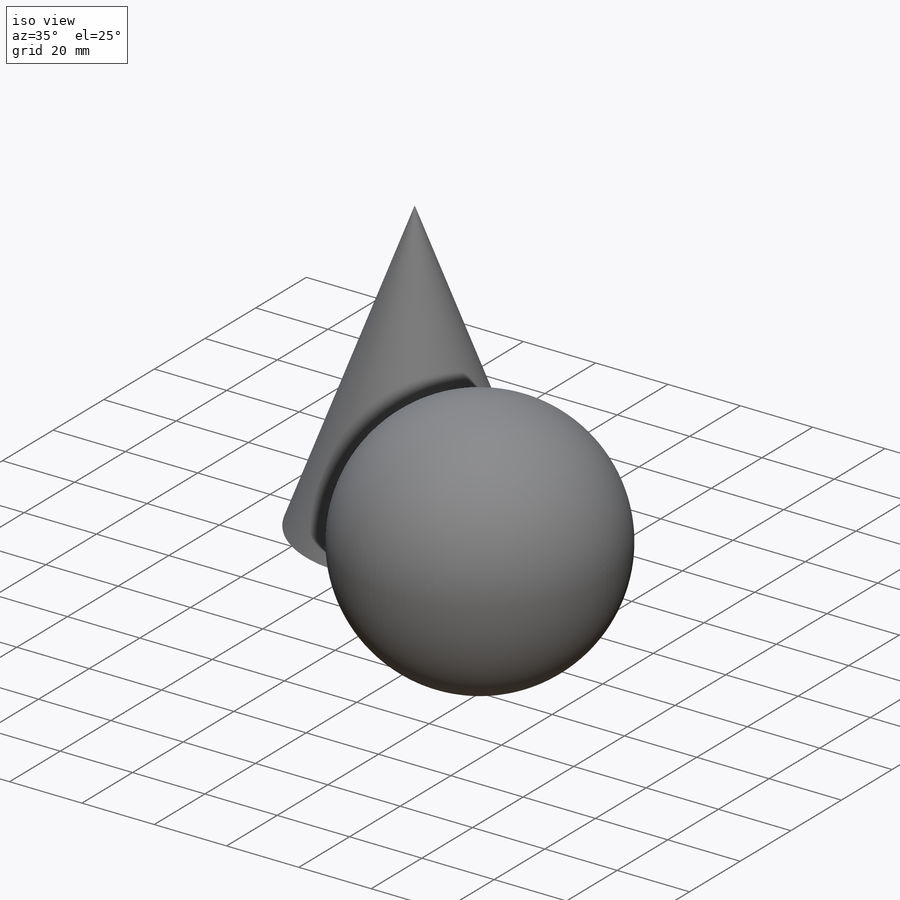
[diagram: iso view]
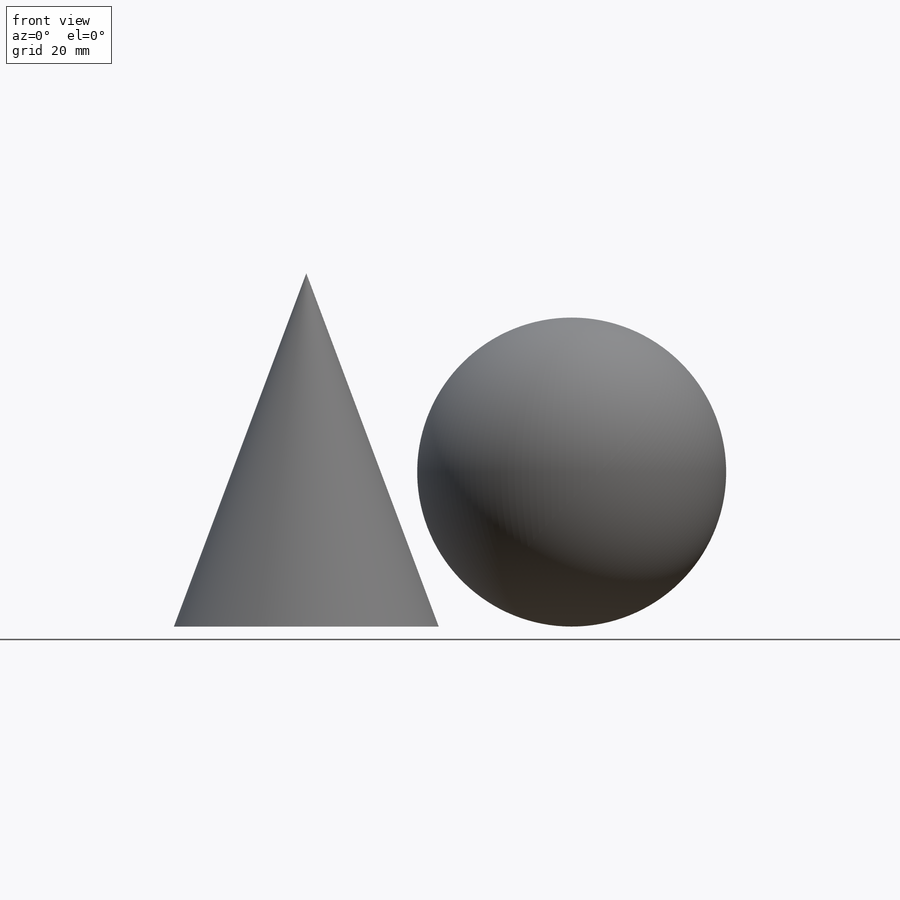
[diagram: front view]
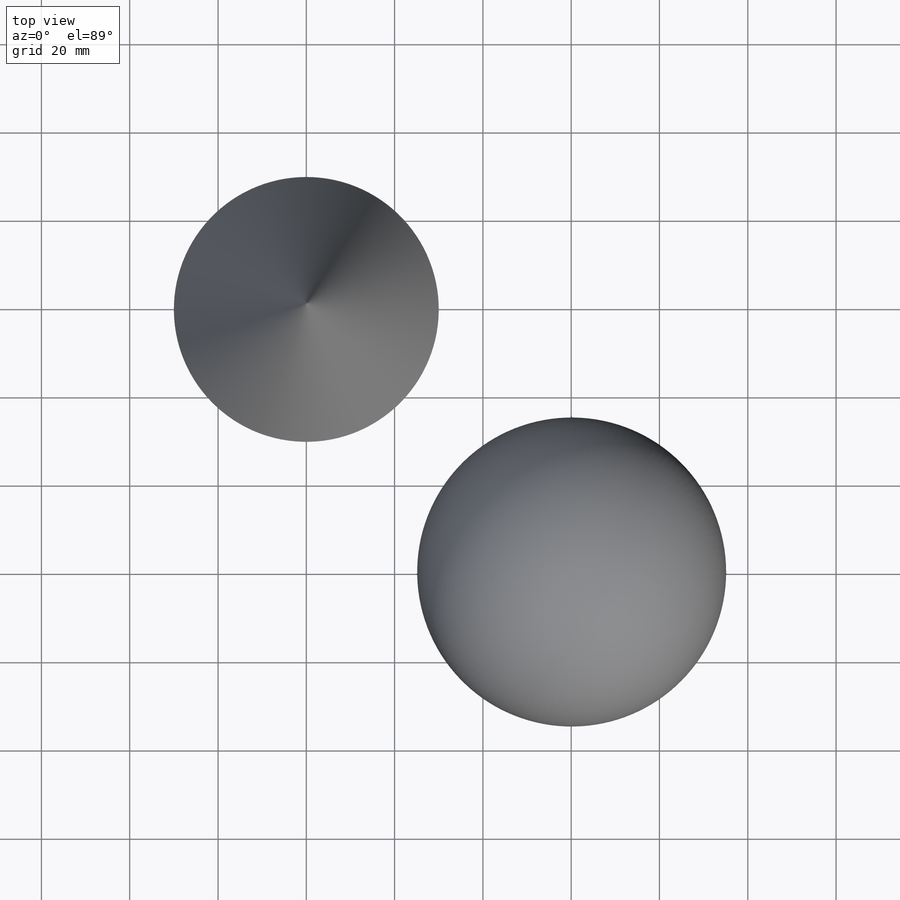
[diagram: top view]
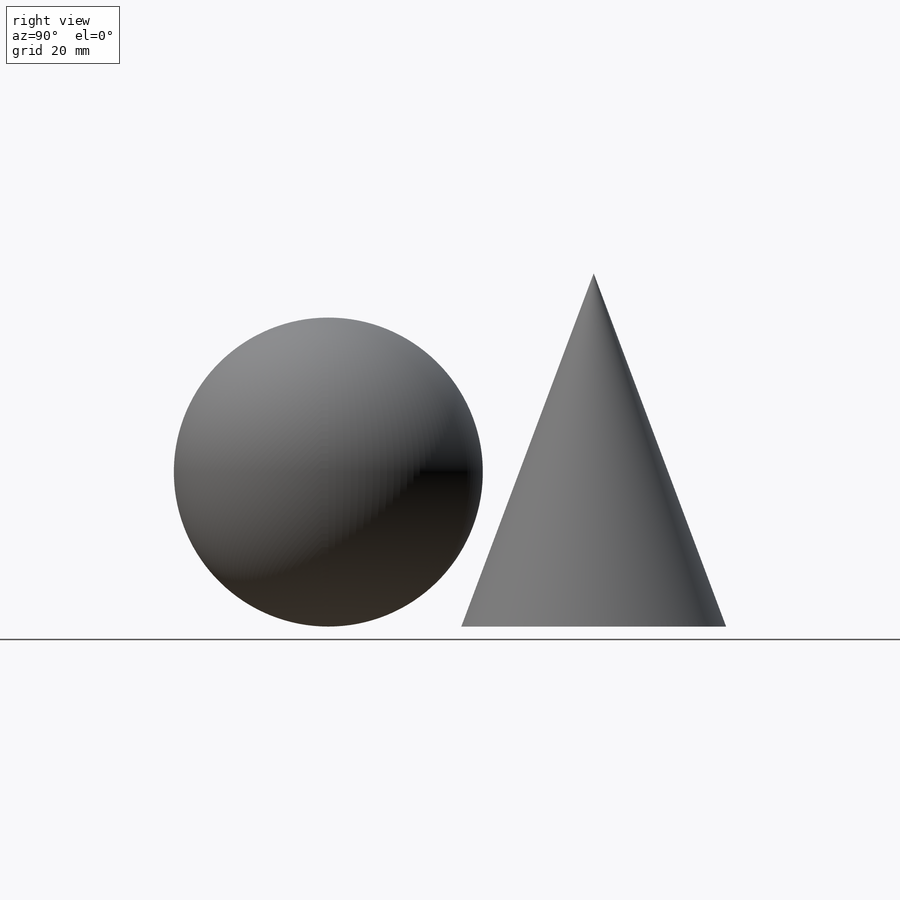
[diagram: right view]
SOLIDWORKS PART (.sldprt)
format: sldprt  version: not decoded by parser v0  size: 752,128 bytes
history: native  units: mm
features: sketch x8, plane x3, revolve x2, material x1 (+14 scaffold rows collapsed)
feature tree (28):
  scaffold x14  (default folders/planes/origin — collapsed)
  material  "Material <not specified>"
  sketch  "Sketch1"  dims[D1=~16.874296mm]
  sketch  "Sketch2"  dims[D1=80.0mm]
  sketch  "3DSketch1"
  plane  "Plane1"
  sketch  "Sketch3"
  revolve  "SphereA"  Angle=360deg
  sketch  "Sketch4"  dims[D1=~10.493422mm]
  plane  "Plane2"
  sketch  "Sketch5"  dims[D1=~51.332361mm]
  sketch  "3DSketch2"
  plane  "Plane3"
  sketch  "Sketch6"
  revolve  "SphereC"  Angle=360deg
decode coverage: 6 of 10 modeling features carry decoded parameters
note: ~ marks probable driven/reference dimensions
note: suppression state not decoded; provenance and decode notes live in map.json
